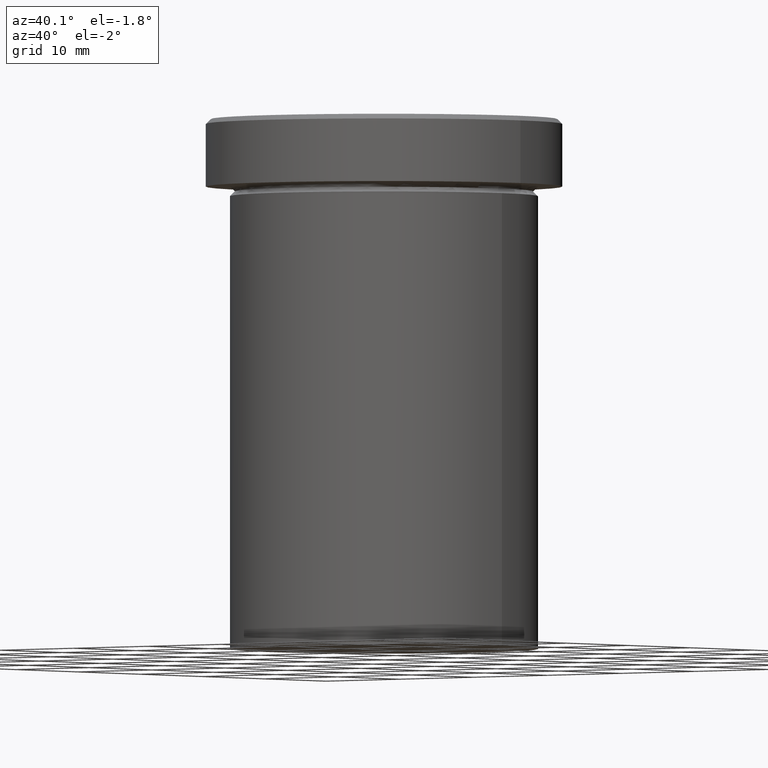
[diagram: clean part render]
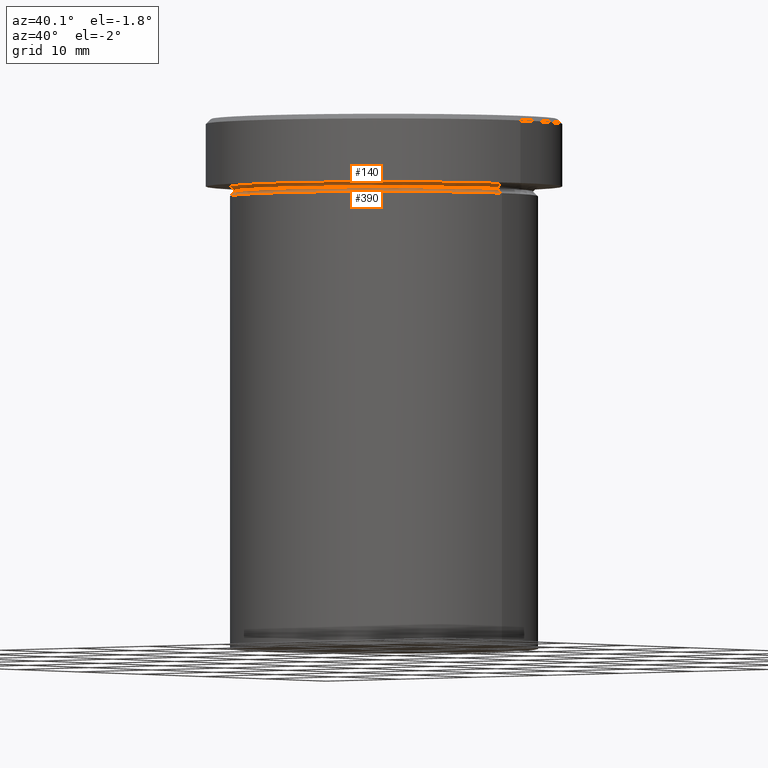
[diagram: same view with one multi-face feature highlighted, each face labeled with its STEP entity id]
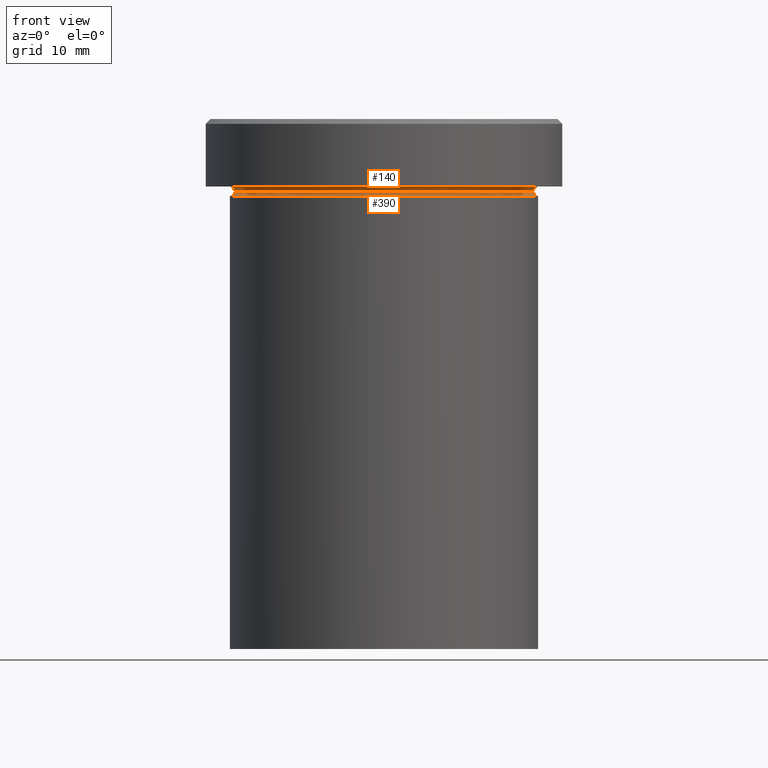
[diagram: same view with one multi-face feature highlighted, each face labeled with its STEP entity id]
A machine part, auxiliary view. The highlighted faces form ONE feature: a constant-radius fillet chain: 2 tangent blend faces with common blend radius 0.5 mm. The faces share edges in the B-rep.
A second angle (front view) of the same feature is appended — it is thin or edge-on in the first view.
Their STEP definitions:
[1] entity #140 (Torus):
#13 = CIRCLE ( 'NONE', #351, 0.5000000000000004441 ) ;
#20 = EDGE_LOOP ( 'NONE', ( #344, #82, #402, #115 ) ) ;
#21 = CARTESIAN_POINT ( 'NONE',  ( 0.000000000000000000, 0.000000000000000000, -6.999999999999999112 ) ) ;
#60 = DIRECTION ( 'NONE',  ( -0.000000000000000000, -0.000000000000000000, 1.000000000000000000 ) ) ;
#63 = DIRECTION ( 'NONE',  ( -1.224646799147353207E-16, 1.000000000000000000, 0.000000000000000000 ) ) ;
#82 = ORIENTED_EDGE ( 'NONE', *, *, #338, .T. ) ;
#105 = DIRECTION ( 'NONE',  ( 0.000000000000000000, 0.000000000000000000, -1.000000000000000000 ) ) ;
#109 = CARTESIAN_POINT ( 'NONE',  ( 16.00000000000000000, 1.959434878635765131E-15, -6.999999999999999112 ) ) ;
#115 = ORIENTED_EDGE ( 'NONE', *, *, #374, .F. ) ;
#116 = AXIS2_PLACEMENT_3D ( 'NONE', #391, #105, #357 ) ;
#117 = CARTESIAN_POINT ( 'NONE',  ( 0.000000000000000000, 0.000000000000000000, -7.500000000000000000 ) ) ;
#140 = ADVANCED_FACE ( 'NONE', ( #165 ), #327, .F. ) ;
#151 = DIRECTION ( 'NONE',  ( -0.000000000000000000, -1.000000000000000000, -0.000000000000000000 ) ) ;
#165 = FACE_OUTER_BOUND ( 'NONE', #20, .T. ) ;
#191 = CIRCLE ( 'NONE', #308, 0.5000000000000004441 ) ;
#193 = CARTESIAN_POINT ( 'NONE',  ( -15.50000000000000000, 1.928818708657081344E-15, -7.500000000000000000 ) ) ;
#210 = CARTESIAN_POINT ( 'NONE',  ( 15.50000000000000000, 0.000000000000000000, -7.500000000000000000 ) ) ;
#216 = DIRECTION ( 'NONE',  ( 1.000000000000000000, 0.000000000000000000, 0.000000000000000000 ) ) ;
#218 = VERTEX_POINT ( 'NONE', #210 ) ;
#219 = EDGE_CURVE ( 'NONE', #407, #218, #387, .T. ) ;
#244 = DIRECTION ( 'NONE',  ( -0.000000000000000000, -0.000000000000000000, 1.000000000000000000 ) ) ;
#250 = EDGE_CURVE ( 'NONE', #405, #332, #379, .T. ) ;
#254 = DIRECTION ( 'NONE',  ( 0.000000000000000000, 0.000000000000000000, -1.000000000000000000 ) ) ;
#274 = DIRECTION ( 'NONE',  ( -1.000000000000000000, 0.000000000000000000, 0.000000000000000000 ) ) ;
#308 = AXIS2_PLACEMENT_3D ( 'NONE', #385, #151, #254 ) ;
#313 = CARTESIAN_POINT ( 'NONE',  ( -16.00000000000000000, 0.000000000000000000, -6.999999999999999112 ) ) ;
#327 = TOROIDAL_SURFACE ( 'NONE', #116, 16.00000000000000000, 0.5000000000000000000 ) ;
#332 = VERTEX_POINT ( 'NONE', #109 ) ;
#338 = EDGE_CURVE ( 'NONE', #218, #332, #13, .T. ) ;
#344 = ORIENTED_EDGE ( 'NONE', *, *, #219, .T. ) ;
#347 = DIRECTION ( 'NONE',  ( -1.000000000000000000, -1.224646799147349509E-16, 0.000000000000000000 ) ) ;
#351 = AXIS2_PLACEMENT_3D ( 'NONE', #365, #63, #347 ) ;
#357 = DIRECTION ( 'NONE',  ( -1.000000000000000000, 0.000000000000000000, 0.000000000000000000 ) ) ;
#360 = AXIS2_PLACEMENT_3D ( 'NONE', #21, #60, #274 ) ;
#365 = CARTESIAN_POINT ( 'NONE',  ( 16.00000000000000000, 1.959434878635765131E-15, -7.500000000000000000 ) ) ;
#374 = EDGE_CURVE ( 'NONE', #407, #405, #191, .T. ) ;
#379 = CIRCLE ( 'NONE', #360, 16.00000000000000000 ) ;
#385 = CARTESIAN_POINT ( 'NONE',  ( -16.00000000000000000, 0.000000000000000000, -7.500000000000000000 ) ) ;
#387 = CIRCLE ( 'NONE', #394, 15.50000000000000000 ) ;
#391 = CARTESIAN_POINT ( 'NONE',  ( 0.000000000000000000, 0.000000000000000000, -7.500000000000000000 ) ) ;
#394 = AXIS2_PLACEMENT_3D ( 'NONE', #117, #244, #216 ) ;
#402 = ORIENTED_EDGE ( 'NONE', *, *, #250, .F. ) ;
#405 = VERTEX_POINT ( 'NONE', #313 ) ;
#407 = VERTEX_POINT ( 'NONE', #193 ) ;
[2] entity #390 (Torus):
#3 = DIRECTION ( 'NONE',  ( 0.000000000000000000, -1.000000000000000000, 0.000000000000000000 ) ) ;
#5 = DIRECTION ( 'NONE',  ( -1.000000000000000000, 1.224646799147349509E-16, 0.000000000000000000 ) ) ;
#7 = CARTESIAN_POINT ( 'NONE',  ( 16.00000000000000000, 0.000000000000000000, -7.500000000000000000 ) ) ;
#17 = DIRECTION ( 'NONE',  ( 1.000000000000000000, 0.000000000000000000, 0.000000000000000000 ) ) ;
#46 = EDGE_CURVE ( 'NONE', #407, #248, #52, .T. ) ;
#52 = CIRCLE ( 'NONE', #252, 0.5000000000000004441 ) ;
#59 = ORIENTED_EDGE ( 'NONE', *, *, #265, .T. ) ;
#61 = AXIS2_PLACEMENT_3D ( 'NONE', #368, #178, #17 ) ;
#104 = EDGE_CURVE ( 'NONE', #218, #148, #130, .T. ) ;
#106 = CIRCLE ( 'NONE', #61, 16.00000000000000000 ) ;
#117 = CARTESIAN_POINT ( 'NONE',  ( 0.000000000000000000, 0.000000000000000000, -7.500000000000000000 ) ) ;
#130 = CIRCLE ( 'NONE', #172, 0.5000000000000004441 ) ;
#142 = CARTESIAN_POINT ( 'NONE',  ( -16.00000000000000000, 1.959434878635765131E-15, -8.000000000000000000 ) ) ;
#147 = AXIS2_PLACEMENT_3D ( 'NONE', #249, #345, #186 ) ;
#148 = VERTEX_POINT ( 'NONE', #259 ) ;
#156 = DIRECTION ( 'NONE',  ( 1.224646799147353207E-16, 1.000000000000000000, 0.000000000000000000 ) ) ;
#172 = AXIS2_PLACEMENT_3D ( 'NONE', #7, #3, #377 ) ;
#178 = DIRECTION ( 'NONE',  ( -0.000000000000000000, -0.000000000000000000, 1.000000000000000000 ) ) ;
#186 = DIRECTION ( 'NONE',  ( 1.000000000000000000, 0.000000000000000000, 0.000000000000000000 ) ) ;
#193 = CARTESIAN_POINT ( 'NONE',  ( -15.50000000000000000, 1.928818708657081344E-15, -7.500000000000000000 ) ) ;
#210 = CARTESIAN_POINT ( 'NONE',  ( 15.50000000000000000, 0.000000000000000000, -7.500000000000000000 ) ) ;
#216 = DIRECTION ( 'NONE',  ( 1.000000000000000000, 0.000000000000000000, 0.000000000000000000 ) ) ;
#218 = VERTEX_POINT ( 'NONE', #210 ) ;
#219 = EDGE_CURVE ( 'NONE', #407, #218, #387, .T. ) ;
#235 = ORIENTED_EDGE ( 'NONE', *, *, #46, .T. ) ;
#238 = EDGE_LOOP ( 'NONE', ( #253, #235, #59, #304 ) ) ;
#244 = DIRECTION ( 'NONE',  ( -0.000000000000000000, -0.000000000000000000, 1.000000000000000000 ) ) ;
#248 = VERTEX_POINT ( 'NONE', #142 ) ;
#249 = CARTESIAN_POINT ( 'NONE',  ( 0.000000000000000000, 0.000000000000000000, -7.500000000000000000 ) ) ;
#252 = AXIS2_PLACEMENT_3D ( 'NONE', #289, #156, #5 ) ;
#253 = ORIENTED_EDGE ( 'NONE', *, *, #219, .F. ) ;
#259 = CARTESIAN_POINT ( 'NONE',  ( 16.00000000000000000, 0.000000000000000000, -8.000000000000000000 ) ) ;
#265 = EDGE_CURVE ( 'NONE', #248, #148, #106, .T. ) ;
#281 = FACE_OUTER_BOUND ( 'NONE', #238, .T. ) ;
#289 = CARTESIAN_POINT ( 'NONE',  ( -16.00000000000000000, 1.959434878635765131E-15, -7.500000000000000000 ) ) ;
#304 = ORIENTED_EDGE ( 'NONE', *, *, #104, .F. ) ;
#345 = DIRECTION ( 'NONE',  ( -0.000000000000000000, -0.000000000000000000, 1.000000000000000000 ) ) ;
#368 = CARTESIAN_POINT ( 'NONE',  ( 0.000000000000000000, 0.000000000000000000, -8.000000000000000000 ) ) ;
#377 = DIRECTION ( 'NONE',  ( 0.000000000000000000, 0.000000000000000000, -1.000000000000000000 ) ) ;
#380 = TOROIDAL_SURFACE ( 'NONE', #147, 16.00000000000000000, 0.5000000000000000000 ) ;
#387 = CIRCLE ( 'NONE', #394, 15.50000000000000000 ) ;
#390 = ADVANCED_FACE ( 'NONE', ( #281 ), #380, .F. ) ;
#394 = AXIS2_PLACEMENT_3D ( 'NONE', #117, #244, #216 ) ;
#407 = VERTEX_POINT ( 'NONE', #193 ) ;